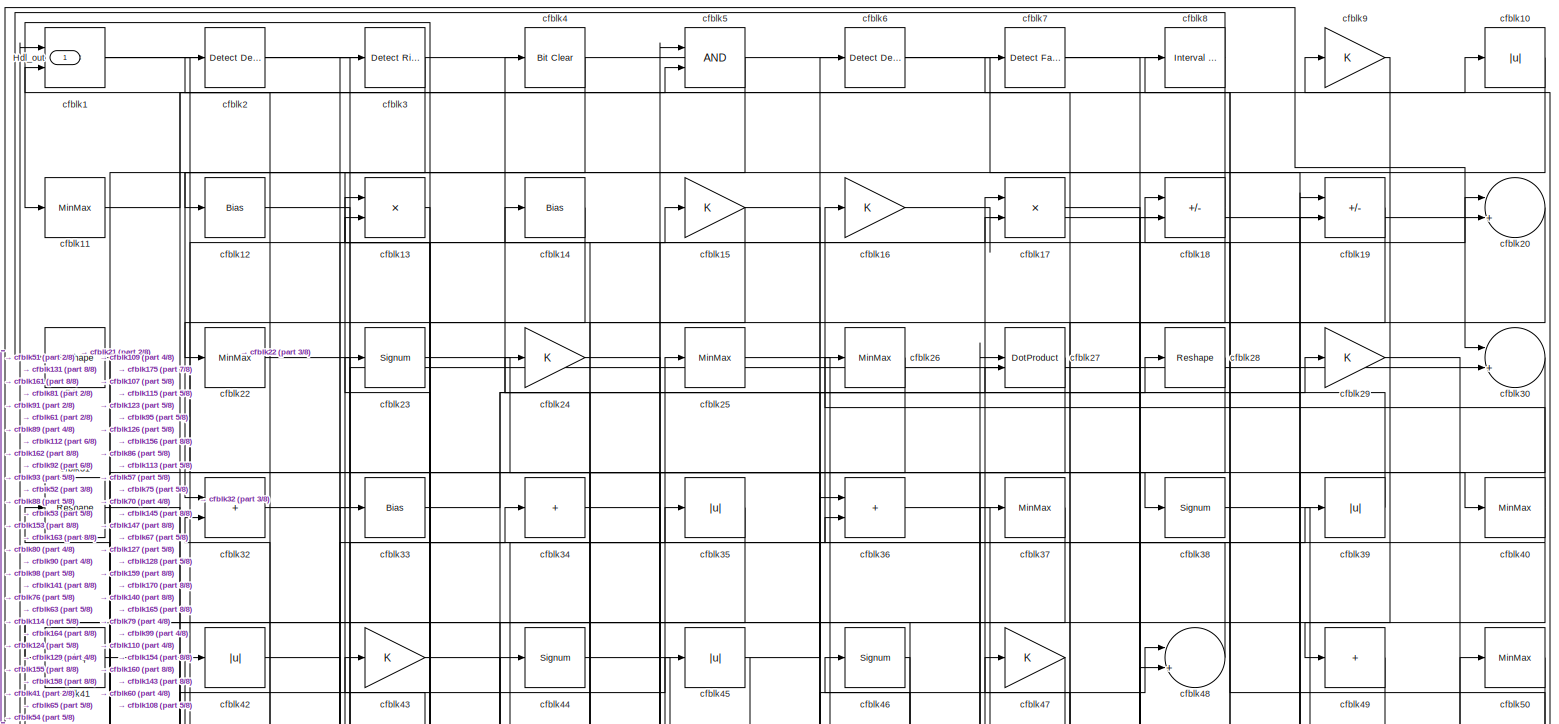
[diagram: root canvas - part 1/8, full width, top band]
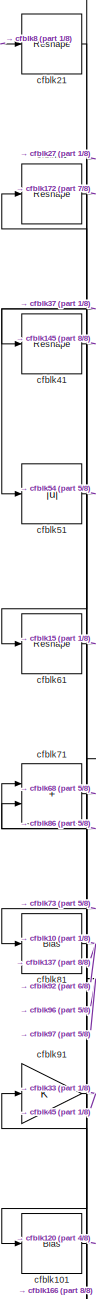
[diagram: root canvas - part 2/8, middle left region]
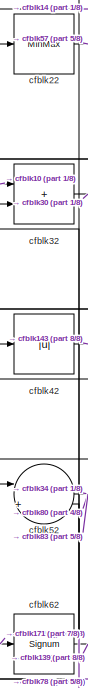
[diagram: root canvas - part 3/8, top left region]
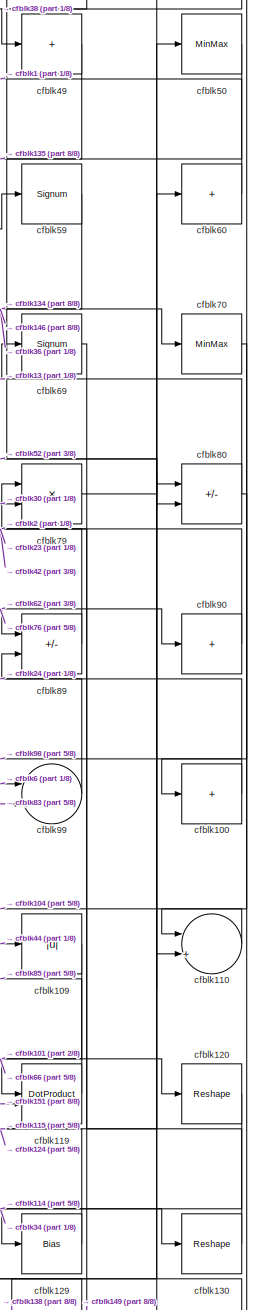
[diagram: root canvas - part 4/8, middle right region]
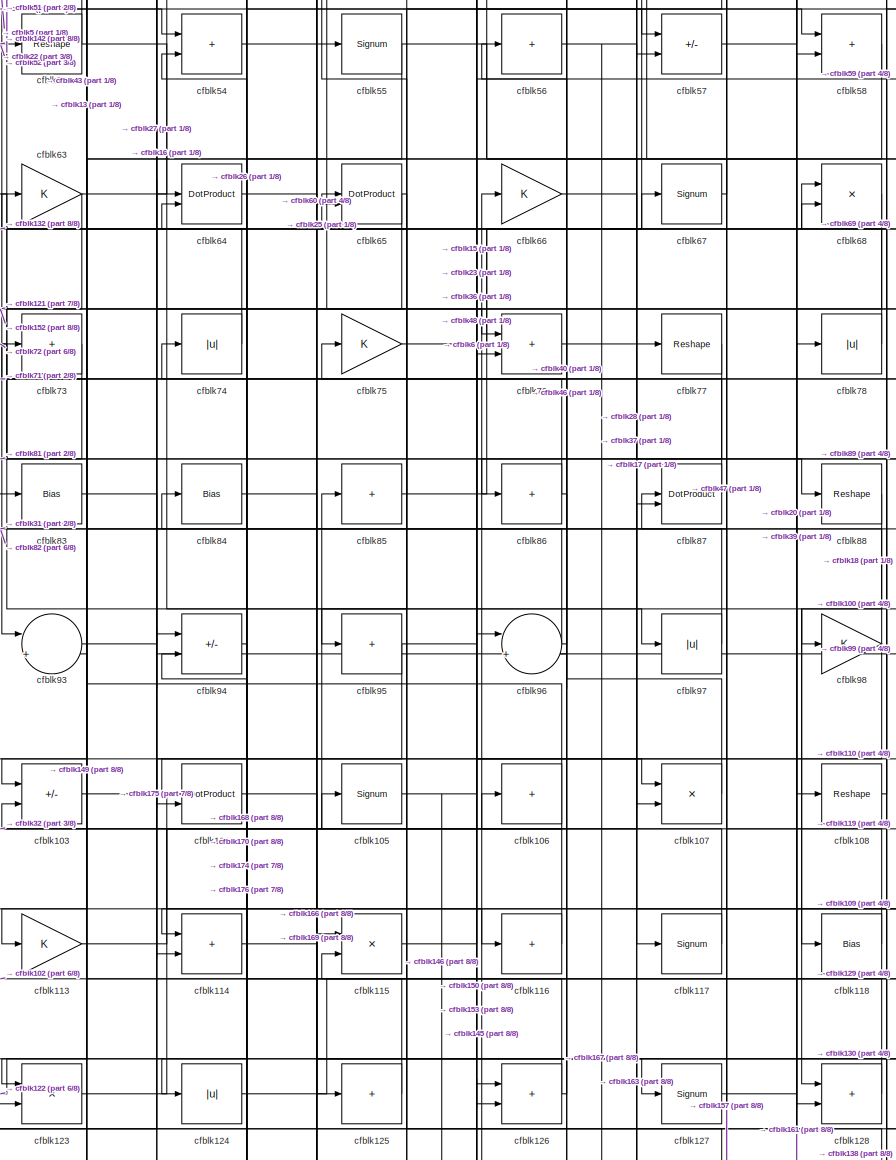
[diagram: root canvas - part 5/8, central region]
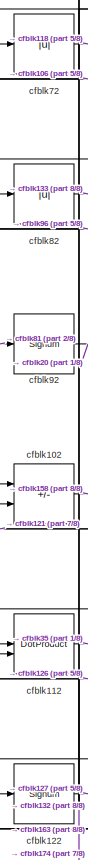
[diagram: root canvas - part 6/8, middle left region]
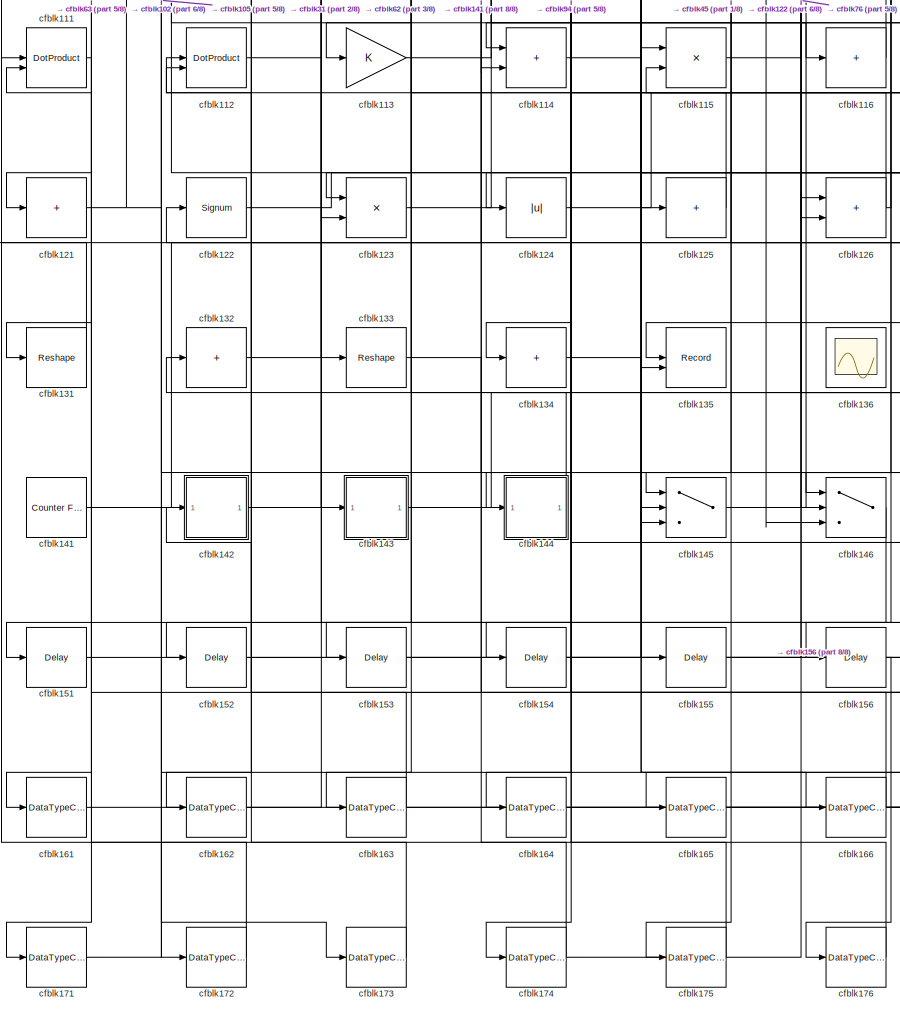
[diagram: root canvas - part 7/8, bottom left region]
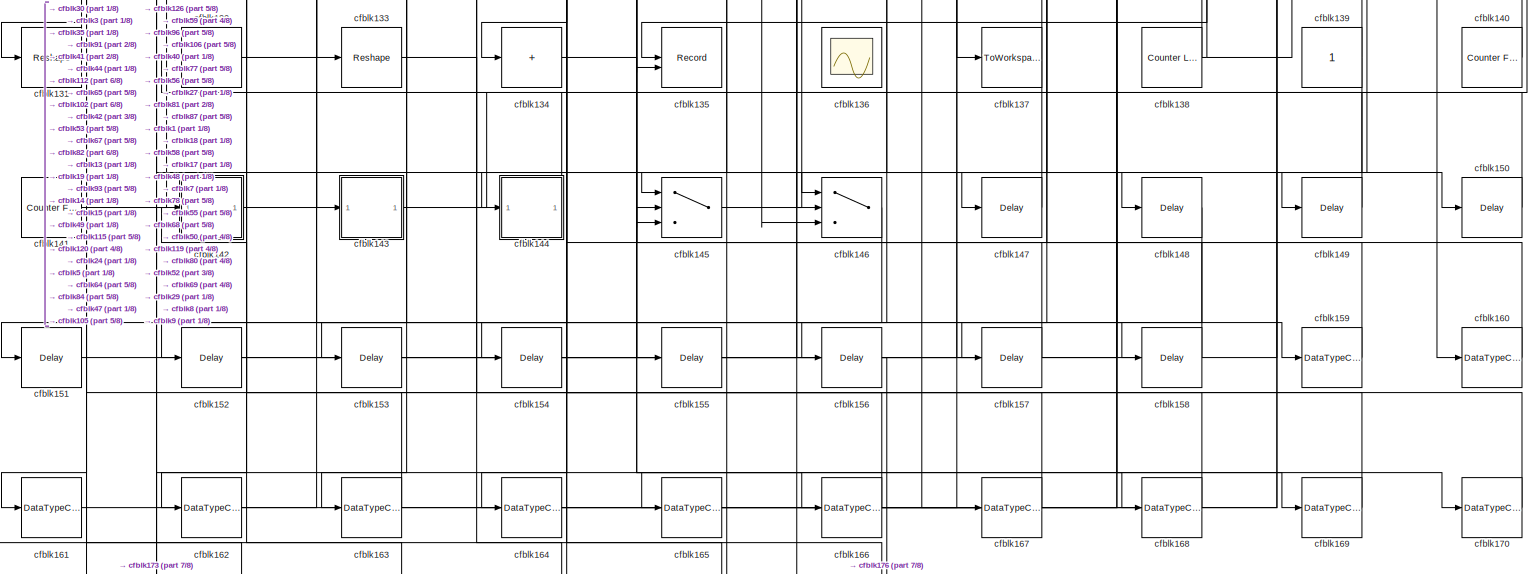
[diagram: root canvas - part 8/8, full width, bottom band]
MODEL slx_710f5223621a
KIND model
CONFIG AbsTol = auto
CONFIG EnableMultiTasking = off
CONFIG FixedStep = auto
CONFIG MaxStep = auto
CONFIG MinStep = auto
CONFIG RelTol = 1e-3
CONFIG SampleTimeConstraint = Unconstrained
CONFIG SolverName = VariableStepAuto
CONFIG StartTime = 0.0
CONFIG StopTime = 10.0
BLOCK [Outport] Hdl_out
  OutDataTypeStr = uint8
BLOCK [RelationalOperator] cfblk1
  InputSameDT = off
  Operator = <=
  OutDataTypeStr = boolean
BLOCK [Abs] cfblk10
  OutDataTypeStr = uint8
  SaturateOnIntegerOverflow = off
BLOCK [Sum] cfblk100
  IconShape = rectangular
  Inputs = +
  OutDataTypeStr = uint8
BLOCK [Bias] cfblk101
  Bias = 0.0
  SaturateOnIntegerOverflow = off
BLOCK [Sum] cfblk102
  IconShape = rectangular
  Inputs = +-
  OutDataTypeStr = uint8
BLOCK [Sum] cfblk103
  IconShape = rectangular
  Inputs = +-
  OutDataTypeStr = uint8
BLOCK [DotProduct] cfblk104
  OutDataTypeStr = uint8
BLOCK [Signum] cfblk105
BLOCK [Sum] cfblk106
  IconShape = rectangular
  Inputs = +
  OutDataTypeStr = uint8
BLOCK [Product] cfblk107
  Inputs = */
  OutDataTypeStr = uint8
  RndMeth = Zero
  SaturateOnIntegerOverflow = on
BLOCK [Reshape] cfblk108
BLOCK [Abs] cfblk109
  OutDataTypeStr = uint8
  SaturateOnIntegerOverflow = off
BLOCK [MinMax] cfblk11
  OutDataTypeStr = uint8
BLOCK [Sum] cfblk110
  Inputs = |++
  OutDataTypeStr = uint8
BLOCK [DotProduct] cfblk111
  OutDataTypeStr = uint8
BLOCK [DotProduct] cfblk112
  OutDataTypeStr = uint8
BLOCK [Gain] cfblk113
  OutDataTypeStr = uint8
BLOCK [Sum] cfblk114
  IconShape = rectangular
  OutDataTypeStr = uint8
BLOCK [Product] cfblk115
  Inputs = */
  OutDataTypeStr = uint8
  RndMeth = Zero
  SaturateOnIntegerOverflow = on
BLOCK [Sum] cfblk116
  IconShape = rectangular
  Inputs = +
  OutDataTypeStr = uint8
BLOCK [Signum] cfblk117
BLOCK [Bias] cfblk118
  Bias = 0.0
  SaturateOnIntegerOverflow = off
BLOCK [DotProduct] cfblk119
  OutDataTypeStr = uint8
BLOCK [Bias] cfblk12
  Bias = 0.0
  SaturateOnIntegerOverflow = off
BLOCK [Reshape] cfblk120
BLOCK [Sum] cfblk121
  IconShape = rectangular
  Inputs = +
  OutDataTypeStr = uint8
BLOCK [Signum] cfblk122
BLOCK [Product] cfblk123
  Inputs = */
  OutDataTypeStr = uint8
  RndMeth = Zero
  SaturateOnIntegerOverflow = on
BLOCK [Abs] cfblk124
  OutDataTypeStr = uint8
  SaturateOnIntegerOverflow = off
BLOCK [Sum] cfblk125
  IconShape = rectangular
  Inputs = +
  OutDataTypeStr = uint8
BLOCK [Sum] cfblk126
  IconShape = rectangular
  OutDataTypeStr = uint8
BLOCK [Signum] cfblk127
BLOCK [Sum] cfblk128
  IconShape = rectangular
  OutDataTypeStr = uint8
BLOCK [Bias] cfblk129
  Bias = 0.0
  SaturateOnIntegerOverflow = off
BLOCK [Product] cfblk13
  Inputs = */
  OutDataTypeStr = uint8
  RndMeth = Zero
  SaturateOnIntegerOverflow = on
BLOCK [Reshape] cfblk130
BLOCK [Reshape] cfblk131
BLOCK [Sum] cfblk132
  IconShape = rectangular
  Inputs = +
  OutDataTypeStr = uint8
BLOCK [Reshape] cfblk133
BLOCK [Sum] cfblk134
  IconShape = rectangular
  Inputs = +
  OutDataTypeStr = uint8
BLOCK [Record] cfblk135
  CompatibilityTag = XY
  FileSettingsInternal = {"entries":[{"content":{"excelSettings":{"content":{},"type":"Streamout.ExcelSettings"}},"type":"Streamout.FileSettingStorage","uuid":""}],"packageUris":["http:\/\/schema.mathworks.com\/mf0\/streamout_blocks\/R2020a"],"version":"1.0"}
  Layout = [1 1]
  SignalsInternal = {"entries":[{"content":{"signals":[{"content":{"blockPath":[],"dimensions":[1],"domain":"","lineColor":"#a2142f","plots":[1],"port":1,"signalID":14508,"signalName":"cfblk50"},"type":"RecordBlkView.Signal","uuid":""},{"content":{"blockPath":[],"dimensions":[1],"domain":"","lineColor":"#139fff","plots":[1],"port":2,"signalID":14511,"signalName":"cfblk120"},"type":"RecordBlkView.Signal","uuid":""}]},...<+143ch>
  VisualizationBindings = {"xyplotplugin":{"info":[{"series":[{"bindingParametersList":[{"parameter":"X-Axis","signalID":14508,"signalName":"cfblk50"},{"parameter":"Y-Axis","signalID":14511,"signalName":"cfblk120"}],"seriesID":30695}],"subplotID":1}]}}
  st = -1
BLOCK [Scope] cfblk136
  Floating = on
  NumInputPorts = 1
  ScopeSpecificationString = Simulink.scopes.TimeScopeBlockCfg('CurrentConfiguration', extmgr.ConfigurationSet(extmgr.Configuration('Core','General UI',true,'FigureColor',[0.156862745098039 0.156862745098039 0.156862745098039]),extmgr.Configuration('Core','Source UI',true),extmgr.Configuration('Sources','WiredSimulink',true,'DataLoggingVariableName','ScopeData1','DataLoggingSaveFormat','StructureWithTime','DataLoggingLimitDat...<+2713ch>
BLOCK [ToWorkspace] cfblk137
  MaxDataPoints = inf
  SampleTime = -1
  SaveFormat = Timeseries
  VariableName = simout
BLOCK [Reference] cfblk138  REF=hdlsllib/Sources/Counter
Limited
  SourceBlock = hdlsllib/Sources/Counter\nLimited
  SourceType = Counter Limited
BLOCK [Constant] cfblk139
  OutDataTypeStr = uint8
  SampleTime = -1
BLOCK [Bias] cfblk14
  Bias = 0.0
  SaturateOnIntegerOverflow = off
BLOCK [Reference] cfblk140  REF=hdlsllib/Sources/Counter
Free-Running
  SourceBlock = hdlsllib/Sources/Counter\nFree-Running
  SourceType = Counter Free-Running
BLOCK [Reference] cfblk141  REF=hdlsllib/Sources/Counter
Free-Running
  SourceBlock = hdlsllib/Sources/Counter\nFree-Running
  SourceType = Counter Free-Running
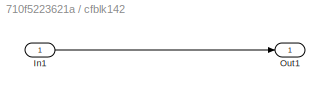
BLOCK [SubSystem] cfblk142
  LibrarySourceBlock = hdlsllib/Ports &\nSubsystems/Subsystem
BLOCK [Inport] cfblk142/In1
BLOCK [Outport] cfblk142/Out1
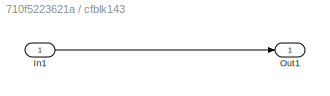
BLOCK [SubSystem] cfblk143
  LibrarySourceBlock = hdlsllib/Ports &\nSubsystems/Subsystem
BLOCK [Inport] cfblk143/In1
BLOCK [Outport] cfblk143/Out1
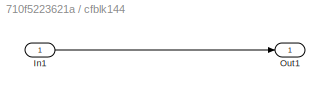
BLOCK [SubSystem] cfblk144
  LibrarySourceBlock = hdlsllib/Ports &\nSubsystems/Subsystem
BLOCK [Inport] cfblk144/In1
BLOCK [Outport] cfblk144/Out1
BLOCK [Switch] cfblk145
  InputSameDT = off
  OutDataTypeStr = uint8
  SaturateOnIntegerOverflow = off
BLOCK [Switch] cfblk146
  InputSameDT = off
  OutDataTypeStr = uint8
  SaturateOnIntegerOverflow = off
BLOCK [Delay] cfblk147
  InputPortMap = u0
  SampleTime = 1
BLOCK [Delay] cfblk148
  InputPortMap = u0
  SampleTime = 1
BLOCK [Delay] cfblk149
  InputPortMap = u0
  SampleTime = 1
BLOCK [Gain] cfblk15
  OutDataTypeStr = uint8
BLOCK [Delay] cfblk150
  InputPortMap = u0
  SampleTime = 1
BLOCK [Delay] cfblk151
  InputPortMap = u0
  SampleTime = 1
BLOCK [Delay] cfblk152
  InputPortMap = u0
  SampleTime = 1
BLOCK [Delay] cfblk153
  InputPortMap = u0
  SampleTime = 1
BLOCK [Delay] cfblk154
  InputPortMap = u0
  SampleTime = 1
BLOCK [Delay] cfblk155
  InputPortMap = u0
  SampleTime = 1
BLOCK [Delay] cfblk156
  InputPortMap = u0
  SampleTime = 1
BLOCK [Delay] cfblk157
  InputPortMap = u0
  SampleTime = 1
BLOCK [Delay] cfblk158
  InputPortMap = u0
  SampleTime = 1
BLOCK [DataTypeConversion] cfblk159
  OutDataTypeStr = uint8
  RndMeth = Floor
  SaturateOnIntegerOverflow = off
BLOCK [Gain] cfblk16
  OutDataTypeStr = uint8
BLOCK [DataTypeConversion] cfblk160
  OutDataTypeStr = uint8
  RndMeth = Floor
  SaturateOnIntegerOverflow = off
BLOCK [DataTypeConversion] cfblk161
  OutDataTypeStr = uint8
  RndMeth = Floor
  SaturateOnIntegerOverflow = off
BLOCK [DataTypeConversion] cfblk162
  OutDataTypeStr = uint8
  RndMeth = Floor
  SaturateOnIntegerOverflow = off
BLOCK [DataTypeConversion] cfblk163
  OutDataTypeStr = uint8
  RndMeth = Floor
  SaturateOnIntegerOverflow = off
BLOCK [DataTypeConversion] cfblk164
  OutDataTypeStr = uint8
  RndMeth = Floor
  SaturateOnIntegerOverflow = off
BLOCK [DataTypeConversion] cfblk165
  OutDataTypeStr = uint8
  RndMeth = Floor
  SaturateOnIntegerOverflow = off
BLOCK [DataTypeConversion] cfblk166
  OutDataTypeStr = uint8
  RndMeth = Floor
  SaturateOnIntegerOverflow = off
BLOCK [DataTypeConversion] cfblk167
  OutDataTypeStr = uint8
  RndMeth = Floor
  SaturateOnIntegerOverflow = off
BLOCK [DataTypeConversion] cfblk168
  OutDataTypeStr = uint8
  RndMeth = Floor
  SaturateOnIntegerOverflow = off
BLOCK [DataTypeConversion] cfblk169
  OutDataTypeStr = uint8
  RndMeth = Floor
  SaturateOnIntegerOverflow = off
BLOCK [Product] cfblk17
  Inputs = */
  OutDataTypeStr = uint8
  RndMeth = Zero
  SaturateOnIntegerOverflow = on
BLOCK [DataTypeConversion] cfblk170
  OutDataTypeStr = uint8
  RndMeth = Floor
  SaturateOnIntegerOverflow = off
BLOCK [DataTypeConversion] cfblk171
  OutDataTypeStr = uint8
  RndMeth = Floor
  SaturateOnIntegerOverflow = off
BLOCK [DataTypeConversion] cfblk172
  OutDataTypeStr = uint8
  RndMeth = Floor
  SaturateOnIntegerOverflow = off
BLOCK [DataTypeConversion] cfblk173
  OutDataTypeStr = uint8
  RndMeth = Floor
  SaturateOnIntegerOverflow = off
BLOCK [DataTypeConversion] cfblk174
  OutDataTypeStr = uint8
  RndMeth = Floor
  SaturateOnIntegerOverflow = off
BLOCK [DataTypeConversion] cfblk175
  OutDataTypeStr = uint8
  RndMeth = Floor
  SaturateOnIntegerOverflow = off
BLOCK [DataTypeConversion] cfblk176
  OutDataTypeStr = uint8
  RndMeth = Floor
  SaturateOnIntegerOverflow = off
BLOCK [Sum] cfblk18
  IconShape = rectangular
  Inputs = +-
  OutDataTypeStr = uint8
BLOCK [Sum] cfblk19
  IconShape = rectangular
  Inputs = +-
  OutDataTypeStr = uint8
BLOCK [Reference] cfblk2  REF=simulink/Logic and Bit
Operations/Detect
Decrease
  LibrarySourceBlock = hdlsllib/Logic and Bit\nOperations/Detect\nDecrease
  SourceBlock = simulink/Logic and Bit\nOperations/Detect\nDecrease
  SourceType = Detect Decrease
BLOCK [Sum] cfblk20
  Inputs = |++
  OutDataTypeStr = uint8
BLOCK [Reshape] cfblk21
BLOCK [MinMax] cfblk22
  OutDataTypeStr = uint8
BLOCK [Signum] cfblk23
BLOCK [Gain] cfblk24
  OutDataTypeStr = uint8
BLOCK [MinMax] cfblk25
  OutDataTypeStr = uint8
BLOCK [MinMax] cfblk26
  OutDataTypeStr = uint8
BLOCK [DotProduct] cfblk27
  OutDataTypeStr = uint8
BLOCK [Reshape] cfblk28
BLOCK [Gain] cfblk29
  OutDataTypeStr = uint8
BLOCK [Reference] cfblk3  REF=hdlsllib/Logic and Bit
Operations/Detect Rise
Positive
  SourceBlock = hdlsllib/Logic and Bit\nOperations/Detect Rise\nPositive
  SourceType = Detect Rise Positive
BLOCK [Sum] cfblk30
  Inputs = |++
  OutDataTypeStr = uint8
BLOCK [Reshape] cfblk31
BLOCK [Sum] cfblk32
  IconShape = rectangular
  OutDataTypeStr = uint8
BLOCK [Bias] cfblk33
  Bias = 0.0
  SaturateOnIntegerOverflow = off
BLOCK [Sum] cfblk34
  IconShape = rectangular
  Inputs = +
  OutDataTypeStr = uint8
BLOCK [Abs] cfblk35
  OutDataTypeStr = uint8
  SaturateOnIntegerOverflow = off
BLOCK [Sum] cfblk36
  IconShape = rectangular
  OutDataTypeStr = uint8
BLOCK [MinMax] cfblk37
  OutDataTypeStr = uint8
BLOCK [Signum] cfblk38
BLOCK [Abs] cfblk39
  OutDataTypeStr = uint8
  SaturateOnIntegerOverflow = off
BLOCK [Reference] cfblk4  REF=simulink/Logic and Bit
Operations/Bit Clear
  LibrarySourceBlock = hdlsllib/Logic and Bit\nOperations/Bit Clear
  SourceBlock = simulink/Logic and Bit\nOperations/Bit Clear
  SourceType = Bit Clear
BLOCK [MinMax] cfblk40
  OutDataTypeStr = uint8
BLOCK [Reshape] cfblk41
BLOCK [Abs] cfblk42
  OutDataTypeStr = uint8
  SaturateOnIntegerOverflow = off
BLOCK [Gain] cfblk43
  OutDataTypeStr = uint8
BLOCK [Signum] cfblk44
BLOCK [Abs] cfblk45
  OutDataTypeStr = uint8
  SaturateOnIntegerOverflow = off
BLOCK [Signum] cfblk46
BLOCK [Gain] cfblk47
  OutDataTypeStr = uint8
BLOCK [Sum] cfblk48
  Inputs = |++
  OutDataTypeStr = uint8
BLOCK [Sum] cfblk49
  IconShape = rectangular
  Inputs = +
  OutDataTypeStr = uint8
BLOCK [Logic] cfblk5
  AllPortsSameDT = off
  OutDataTypeStr = boolean
BLOCK [MinMax] cfblk50
  OutDataTypeStr = uint8
BLOCK [Abs] cfblk51
  OutDataTypeStr = uint8
  SaturateOnIntegerOverflow = off
BLOCK [Sum] cfblk52
  Inputs = |++
  OutDataTypeStr = uint8
BLOCK [Reshape] cfblk53
BLOCK [Sum] cfblk54
  IconShape = rectangular
  OutDataTypeStr = uint8
BLOCK [Signum] cfblk55
BLOCK [Sum] cfblk56
  IconShape = rectangular
  Inputs = +
  OutDataTypeStr = uint8
BLOCK [Sum] cfblk57
  IconShape = rectangular
  Inputs = +-
  OutDataTypeStr = uint8
BLOCK [Sum] cfblk58
  IconShape = rectangular
  OutDataTypeStr = uint8
BLOCK [Signum] cfblk59
BLOCK [Reference] cfblk6  REF=simulink/Logic and Bit
Operations/Detect
Decrease
  LibrarySourceBlock = hdlsllib/Logic and Bit\nOperations/Detect\nDecrease
  SourceBlock = simulink/Logic and Bit\nOperations/Detect\nDecrease
  SourceType = Detect Decrease
BLOCK [Sum] cfblk60
  IconShape = rectangular
  Inputs = +
  OutDataTypeStr = uint8
BLOCK [Reshape] cfblk61
BLOCK [Signum] cfblk62
BLOCK [Gain] cfblk63
  OutDataTypeStr = uint8
BLOCK [DotProduct] cfblk64
  OutDataTypeStr = uint8
BLOCK [DotProduct] cfblk65
  OutDataTypeStr = uint8
BLOCK [Gain] cfblk66
  OutDataTypeStr = uint8
BLOCK [Signum] cfblk67
BLOCK [Product] cfblk68
  Inputs = */
  OutDataTypeStr = uint8
  RndMeth = Zero
  SaturateOnIntegerOverflow = on
BLOCK [Signum] cfblk69
BLOCK [Reference] cfblk7  REF=hdlsllib/Logic and Bit
Operations/Detect Fall
Nonpositive
  SourceBlock = hdlsllib/Logic and Bit\nOperations/Detect Fall\nNonpositive
  SourceType = Detect Fall Nonpositive
BLOCK [MinMax] cfblk70
  OutDataTypeStr = uint8
BLOCK [Sum] cfblk71
  IconShape = rectangular
  OutDataTypeStr = uint8
BLOCK [Abs] cfblk72
  OutDataTypeStr = uint8
  SaturateOnIntegerOverflow = off
BLOCK [Sum] cfblk73
  IconShape = rectangular
  Inputs = +
  OutDataTypeStr = uint8
BLOCK [Abs] cfblk74
  OutDataTypeStr = uint8
  SaturateOnIntegerOverflow = off
BLOCK [Gain] cfblk75
  OutDataTypeStr = uint8
BLOCK [Sum] cfblk76
  IconShape = rectangular
  OutDataTypeStr = uint8
BLOCK [Reshape] cfblk77
BLOCK [Abs] cfblk78
  OutDataTypeStr = uint8
  SaturateOnIntegerOverflow = off
BLOCK [Product] cfblk79
  Inputs = */
  OutDataTypeStr = uint8
  RndMeth = Zero
  SaturateOnIntegerOverflow = on
BLOCK [Reference] cfblk8  REF=hdlsllib/Logic and Bit
Operations/Interval Test
  SourceBlock = hdlsllib/Logic and Bit\nOperations/Interval Test
  SourceType = Interval Test
BLOCK [Sum] cfblk80
  IconShape = rectangular
  Inputs = +-
  OutDataTypeStr = uint8
BLOCK [Bias] cfblk81
  Bias = 0.0
  SaturateOnIntegerOverflow = off
BLOCK [Abs] cfblk82
  OutDataTypeStr = uint8
  SaturateOnIntegerOverflow = off
BLOCK [Bias] cfblk83
  Bias = 0.0
  SaturateOnIntegerOverflow = off
BLOCK [Bias] cfblk84
  Bias = 0.0
  SaturateOnIntegerOverflow = off
BLOCK [Sum] cfblk85
  IconShape = rectangular
  Inputs = +
  OutDataTypeStr = uint8
BLOCK [Sum] cfblk86
  IconShape = rectangular
  Inputs = +
  OutDataTypeStr = uint8
BLOCK [DotProduct] cfblk87
  OutDataTypeStr = uint8
BLOCK [Reshape] cfblk88
BLOCK [Sum] cfblk89
  IconShape = rectangular
  Inputs = +-
  OutDataTypeStr = uint8
BLOCK [Gain] cfblk9
  OutDataTypeStr = uint8
BLOCK [Sum] cfblk90
  IconShape = rectangular
  Inputs = +
  OutDataTypeStr = uint8
BLOCK [Gain] cfblk91
  OutDataTypeStr = uint8
BLOCK [Signum] cfblk92
BLOCK [Sum] cfblk93
  Inputs = |++
  OutDataTypeStr = uint8
BLOCK [Sum] cfblk94
  IconShape = rectangular
  Inputs = +-
  OutDataTypeStr = uint8
BLOCK [Sum] cfblk95
  IconShape = rectangular
  Inputs = +
  OutDataTypeStr = uint8
BLOCK [Sum] cfblk96
  Inputs = |++
  OutDataTypeStr = uint8
BLOCK [Abs] cfblk97
  OutDataTypeStr = uint8
  SaturateOnIntegerOverflow = off
BLOCK [Gain] cfblk98
  OutDataTypeStr = uint8
BLOCK [Sum] cfblk99
  Inputs = |++
  OutDataTypeStr = uint8
NET cfblk100:1 -> cfblk89:2, cfblk98:1
LINE cfblk101:1 -> cfblk120:1
LINE cfblk102:1 -> cfblk158:1
LINE cfblk103:1 -> cfblk116:1
LINE cfblk104:1 -> cfblk125:1
NET cfblk105:1 -> cfblk107:1, cfblk146:3
NET cfblk106:1 -> cfblk103:2, cfblk72:1
LINE cfblk107:1 -> cfblk75:1
LINE cfblk108:1 -> cfblk18:1
LINE cfblk109:1 -> cfblk124:1
LINE cfblk10:1 -> cfblk32:1
LINE cfblk110:1 -> cfblk104:1
LINE cfblk111:1 -> cfblk171:1
LINE cfblk112:1 -> cfblk35:1
LINE cfblk113:1 -> cfblk37:1
LINE cfblk114:1 -> cfblk130:1
LINE cfblk115:1 -> cfblk48:1
LINE cfblk116:1 -> cfblk32:2
LINE cfblk117:1 -> cfblk66:1
LINE cfblk118:1 -> cfblk87:1
LINE cfblk119:1 -> cfblk85:1
LINE cfblk11:1 -> cfblk5:2
LINE cfblk120:1 -> cfblk135:2
NET cfblk121:1 -> cfblk102:2, cfblk105:1
LINE cfblk122:1 -> cfblk127:1
LINE cfblk123:1 -> cfblk6:1
NET cfblk124:1 -> cfblk17:2, cfblk60:1
LINE cfblk125:1 -> cfblk73:1
NET cfblk126:1 -> cfblk102:1, cfblk46:1
LINE cfblk127:1 -> cfblk39:1
LINE cfblk128:1 -> cfblk54:2
LINE cfblk129:1 -> cfblk115:2
LINE cfblk12:1 -> cfblk40:1
LINE cfblk130:1 -> cfblk79:1
LINE cfblk131:1 -> cfblk30:1
NET cfblk132:1 -> cfblk112:1, cfblk67:1
LINE cfblk133:1 -> cfblk148:1
LINE cfblk134:1 -> cfblk150:1
NET cfblk138:1 -> cfblk55:1, cfblk68:1, cfblk80:1
NET cfblk139:1 -> cfblk144:1, cfblk52:2
LINE cfblk13:1 -> cfblk153:1
LINE cfblk140:1 -> cfblk8:1
NET cfblk141:1 -> cfblk165:1, cfblk168:1, cfblk173:1, cfblk44:1
LINE cfblk142/In1:1 -> cfblk142/Out1:1
LINE cfblk142:1 -> cfblk53:1
LINE cfblk143/In1:1 -> cfblk143/Out1:1
LINE cfblk143:1 -> cfblk9:1
LINE cfblk144/In1:1 -> cfblk144/Out1:1
LINE cfblk144:1 -> cfblk132:1
LINE cfblk145:1 -> cfblk106:1
LINE cfblk146:1 -> cfblk151:1
LINE cfblk147:1 -> cfblk1:1
LINE cfblk148:1 -> cfblk162:1
LINE cfblk149:1 -> cfblk93:2
LINE cfblk14:1 -> cfblk22:1
LINE cfblk150:1 -> cfblk126:1
LINE cfblk151:1 -> cfblk119:2
LINE cfblk152:1 -> cfblk145:2
LINE cfblk153:1 -> cfblk96:1
LINE cfblk154:1 -> cfblk48:2
LINE cfblk155:1 -> cfblk27:1
LINE cfblk156:1 -> cfblk176:1
LINE cfblk157:1 -> cfblk115:1
LINE cfblk158:1 -> cfblk5:1
LINE cfblk159:1 -> cfblk14:1
NET cfblk15:1 -> cfblk107:2, cfblk164:1
LINE cfblk160:1 -> cfblk7:1
LINE cfblk161:1 -> cfblk78:1
LINE cfblk162:1 -> cfblk3:1
NET cfblk163:1 -> cfblk112:2, cfblk87:2
LINE cfblk164:1 -> cfblk19:1
LINE cfblk165:1 -> cfblk19:2
NET cfblk166:1 -> cfblk58:2, cfblk91:1
LINE cfblk167:1 -> cfblk64:1
LINE cfblk168:1 -> cfblk64:2
LINE cfblk169:1 -> cfblk142:1
LINE cfblk16:1 -> cfblk20:2
LINE cfblk170:1 -> cfblk84:1
LINE cfblk171:1 -> cfblk62:1
LINE cfblk172:1 -> cfblk111:1
LINE cfblk173:1 -> cfblk111:2
NET cfblk174:1 -> cfblk122:1, cfblk76:2
LINE cfblk175:1 -> cfblk94:1
LINE cfblk176:1 -> cfblk94:2
LINE cfblk17:1 -> cfblk170:1
NET cfblk18:1 -> Hdl_out:1, cfblk147:1
LINE cfblk19:1 -> cfblk163:1
LINE cfblk1:1 -> cfblk38:1
LINE cfblk20:1 -> cfblk128:2
LINE cfblk21:1 -> cfblk61:1
LINE cfblk22:1 -> cfblk57:1
LINE cfblk23:1 -> cfblk126:2
LINE cfblk24:1 -> cfblk155:1
LINE cfblk25:1 -> cfblk108:1
LINE cfblk26:1 -> cfblk114:1
NET cfblk27:1 -> cfblk41:1, cfblk65:2
LINE cfblk28:1 -> cfblk57:2
LINE cfblk29:1 -> cfblk160:1
LINE cfblk2:1 -> cfblk88:1
LINE cfblk30:1 -> cfblk79:2
LINE cfblk31:1 -> cfblk172:1
LINE cfblk32:1 -> cfblk30:2
LINE cfblk33:1 -> cfblk29:1
LINE cfblk34:1 -> cfblk129:1
LINE cfblk35:1 -> cfblk131:1
LINE cfblk36:1 -> cfblk70:1
LINE cfblk37:1 -> cfblk51:1
LINE cfblk38:1 -> cfblk110:2
LINE cfblk39:1 -> cfblk4:1
LINE cfblk3:1 -> cfblk161:1
NET cfblk40:1 -> cfblk114:2, cfblk156:1, cfblk26:1, cfblk36:2
NET cfblk41:1 -> cfblk101:1, cfblk145:3
LINE cfblk42:1 -> cfblk143:1
LINE cfblk43:1 -> cfblk76:1
LINE cfblk44:1 -> cfblk109:1
NET cfblk45:1 -> cfblk175:1, cfblk28:1
LINE cfblk46:1 -> cfblk86:1
LINE cfblk47:1 -> cfblk145:1
LINE cfblk48:1 -> cfblk11:1
LINE cfblk49:1 -> cfblk154:1
LINE cfblk4:1 -> cfblk12:1
LINE cfblk50:1 -> cfblk135:1
LINE cfblk51:1 -> cfblk54:1
NET cfblk52:1 -> cfblk34:1, cfblk80:2, cfblk83:1
NET cfblk53:1 -> cfblk43:1, cfblk97:1
LINE cfblk54:1 -> cfblk25:1
NET cfblk55:1 -> cfblk103:1, cfblk58:1, cfblk77:1
NET cfblk56:1 -> cfblk117:1, cfblk167:1
LINE cfblk57:1 -> cfblk18:2
NET cfblk58:1 -> cfblk123:1, cfblk157:1
NET cfblk59:1 -> cfblk134:1, cfblk146:2
LINE cfblk5:1 -> cfblk93:1
LINE cfblk60:1 -> cfblk1:2
LINE cfblk61:1 -> cfblk15:1
LINE cfblk62:1 -> cfblk90:1
NET cfblk63:1 -> cfblk121:1, cfblk16:1
LINE cfblk64:1 -> cfblk166:1
NET cfblk65:1 -> cfblk152:1, cfblk95:1
LINE cfblk66:1 -> cfblk119:1
LINE cfblk67:1 -> cfblk47:1
LINE cfblk68:1 -> cfblk113:1
LINE cfblk69:1 -> cfblk149:1
LINE cfblk6:1 -> cfblk99:1
LINE cfblk70:1 -> cfblk100:1
LINE cfblk71:1 -> cfblk68:2
LINE cfblk72:1 -> cfblk118:1
LINE cfblk73:1 -> cfblk81:1
LINE cfblk74:1 -> cfblk63:1
LINE cfblk75:1 -> cfblk17:1
LINE cfblk76:1 -> cfblk89:1
LINE cfblk77:1 -> cfblk146:1
LINE cfblk78:1 -> cfblk52:1
LINE cfblk79:1 -> cfblk50:1
LINE cfblk7:1 -> cfblk159:1
NET cfblk80:1 -> cfblk110:1, cfblk13:2
NET cfblk81:1 -> cfblk10:1, cfblk137:1, cfblk92:1
LINE cfblk82:1 -> cfblk133:1
LINE cfblk83:1 -> cfblk99:2
LINE cfblk84:1 -> cfblk169:1
NET cfblk85:1 -> cfblk59:1, cfblk65:1, cfblk69:1
NET cfblk86:1 -> cfblk71:1, cfblk96:2
LINE cfblk87:1 -> cfblk74:1
LINE cfblk88:1 -> cfblk128:1
NET cfblk89:1 -> cfblk2:1, cfblk42:1
LINE cfblk8:1 -> cfblk21:1
LINE cfblk90:1 -> cfblk23:1
NET cfblk91:1 -> cfblk33:1, cfblk45:1
LINE cfblk92:1 -> cfblk20:1
LINE cfblk93:1 -> cfblk27:2
LINE cfblk94:1 -> cfblk174:1
NET cfblk95:1 -> cfblk123:2, cfblk36:1
NET cfblk96:1 -> cfblk56:1, cfblk71:2, cfblk82:1
LINE cfblk97:1 -> cfblk31:1
NET cfblk98:1 -> cfblk104:2, cfblk13:1
LINE cfblk99:1 -> cfblk24:1
LINE cfblk9:1 -> cfblk49:1
note: NET lines group one-source signal fan-out (src -> all destinations, sorted); 1:1 wires keep LINE
